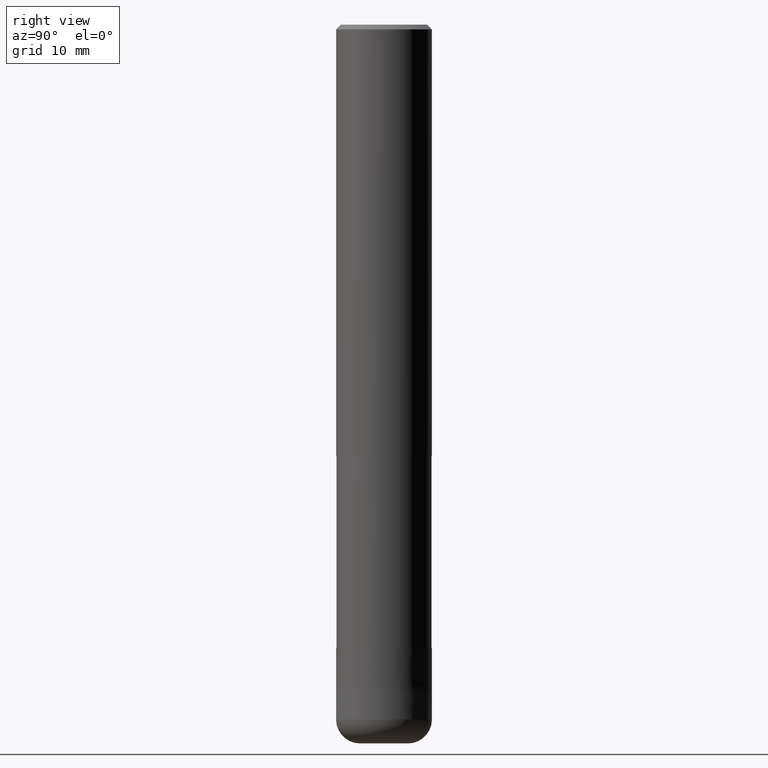
[diagram: clean part render]
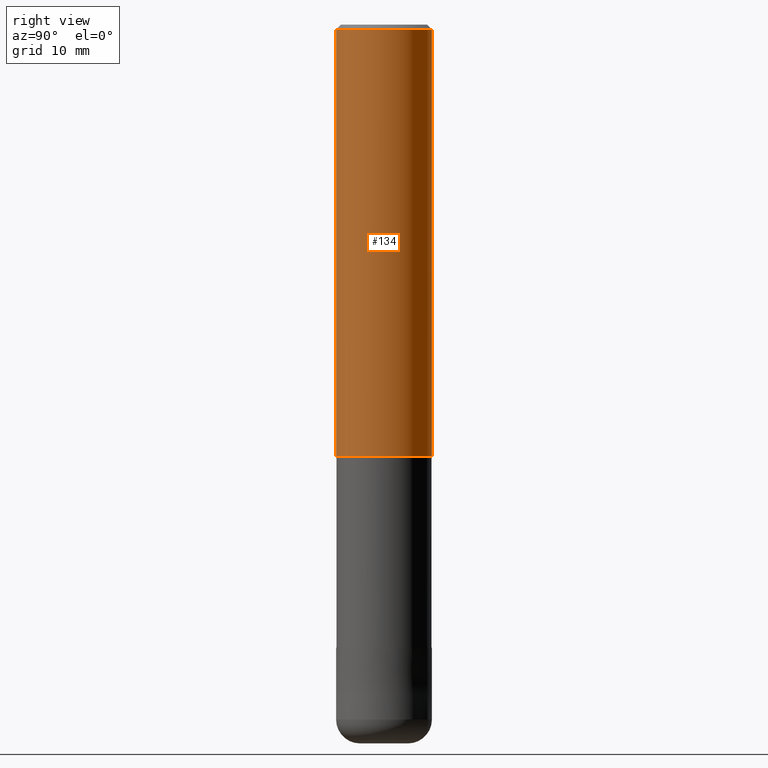
[diagram: same view with one face highlighted and labeled with its STEP entity id]
A machine part, right view. The second image highlights one B-rep face of the part: STEP entity #134.
In plain terms, the highlighted cylindrical surface (partial cylindrical patch) has radius 4 mm, axis along (-0, -0, 1).
Its self-contained STEP definition (entity closure, byte-faithful):
#110=VERTEX_POINT('',#252);
#118=VERTEX_POINT('',#260);
#126=EDGE_CURVE('',#170,#110,#269,.T.);
#130=EDGE_CURVE('',#152,#118,#273,.T.);
#134=ADVANCED_FACE('',(#277),#278,.T.);
#142=EDGE_CURVE('',#118,#110,#286,.T.);
#152=VERTEX_POINT('',#297);
#170=VERTEX_POINT('',#318);
#180=EDGE_CURVE('',#170,#152,#329,.T.);
#252=CARTESIAN_POINT('',(4.89842541528951E-016,-4.0,-0.399999999999999));
#260=CARTESIAN_POINT('',(4.89842541528951E-016,-4.0,-36.0));
#269=CIRCLE('',#421,4.0);
#273=CIRCLE('',#427,4.0);
#277=FACE_OUTER_BOUND('',#432,.T.);
#278=CYLINDRICAL_SURFACE('',#433,4.0);
#286=LINE('',#444,#445);
#297=CARTESIAN_POINT('',(0.0,4.0,-36.0));
#318=CARTESIAN_POINT('',(0.0,4.0,-0.399999999999999));
#329=LINE('',#496,#497);
#421=AXIS2_PLACEMENT_3D('',#593,#594,#595);
#427=AXIS2_PLACEMENT_3D('',#599,#600,#601);
#432=EDGE_LOOP('',(#606,#607,#608,#609));
#433=AXIS2_PLACEMENT_3D('',#610,#611,#612);
#444=CARTESIAN_POINT('',(4.89842541528951E-016,-4.0,-18.2));
#445=VECTOR('',#619,1.0);
#496=CARTESIAN_POINT('',(-4.89842541528951E-016,4.0,-18.2));
#497=VECTOR('',#673,1.0);
#593=CARTESIAN_POINT('',(0.0,0.0,-0.399999999999999));
#594=DIRECTION('',(0.0,0.0,-1.0));
#595=DIRECTION('',(0.0,1.0,0.0));
#599=CARTESIAN_POINT('',(0.0,0.0,-36.0));
#600=DIRECTION('',(0.0,0.0,-1.0));
#601=DIRECTION('',(0.0,1.0,0.0));
#606=ORIENTED_EDGE('',*,*,#180,.F.);
#607=ORIENTED_EDGE('',*,*,#126,.T.);
#608=ORIENTED_EDGE('',*,*,#142,.F.);
#609=ORIENTED_EDGE('',*,*,#130,.F.);
#610=CARTESIAN_POINT('',(0.0,0.0,-18.2));
#611=DIRECTION('',(-0.0,-0.0,1.0));
#612=DIRECTION('',(0.0,1.0,0.0));
#619=DIRECTION('',(-0.0,-0.0,1.0));
#673=DIRECTION('',(0.0,0.0,-1.0));